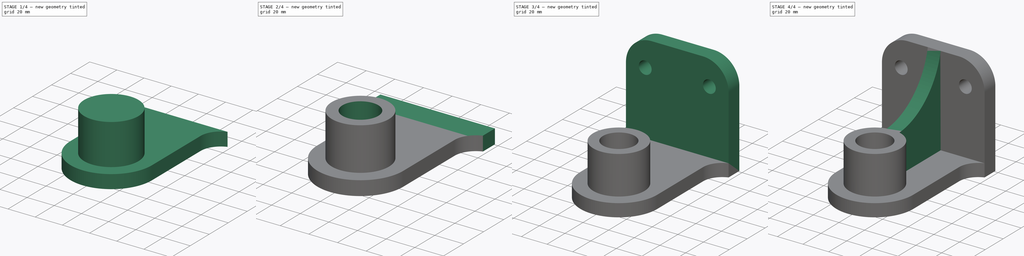
[diagram: build sequence overview — one tinted view per stage of 4, left to right]
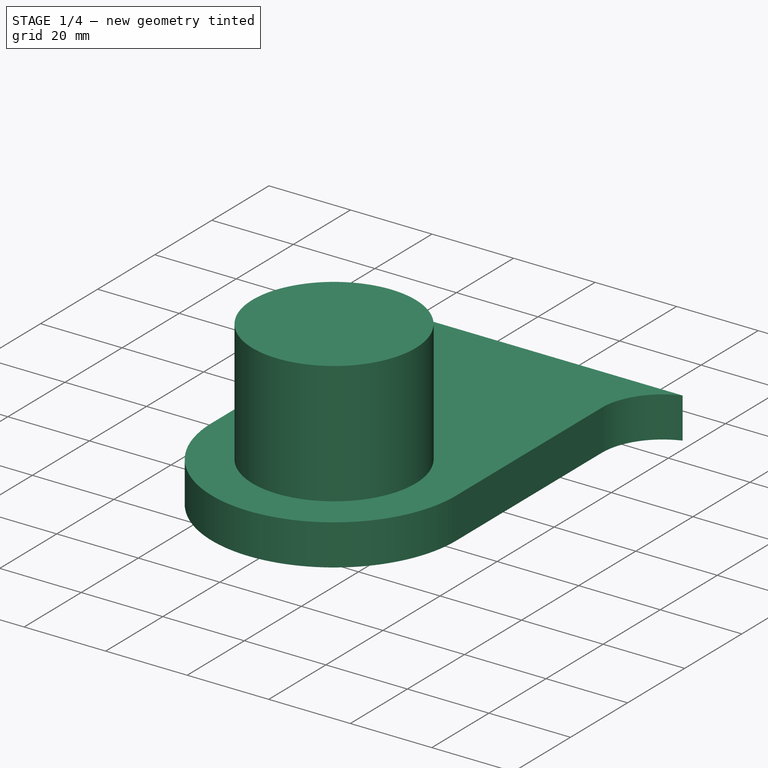
[diagram: stage 1 of 4 — iso view after this stage's code; geometry added in this stage tinted green]
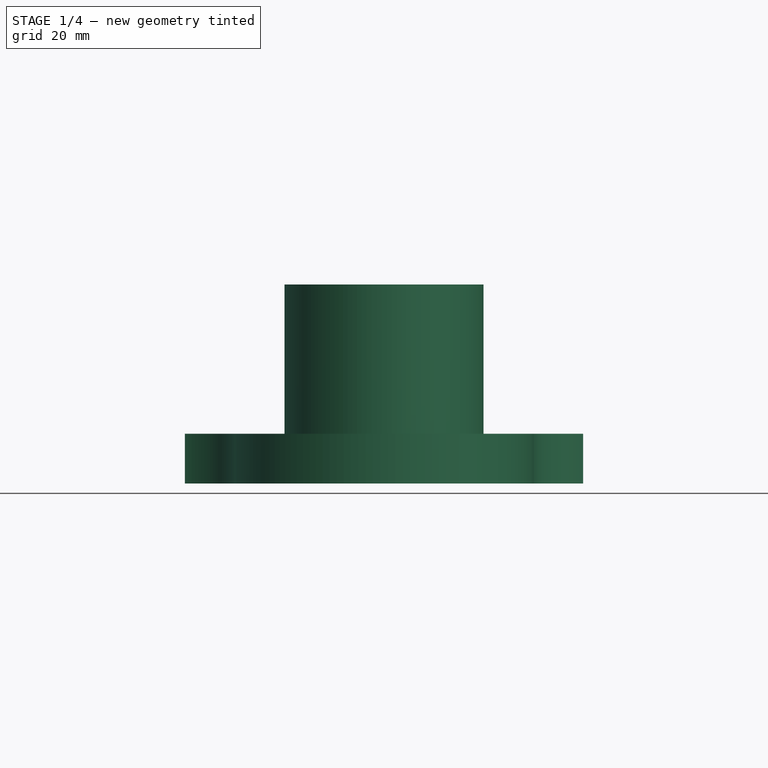
[diagram: stage 1 of 4 — front view after this stage's code; geometry added in this stage tinted green]
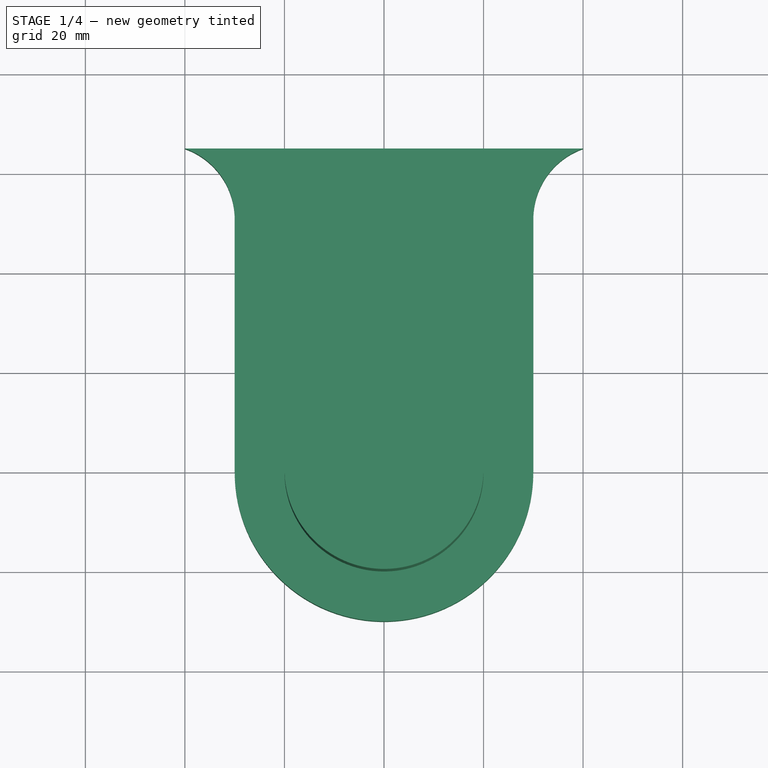
[diagram: stage 1 of 4 — top view after this stage's code; geometry added in this stage tinted green]
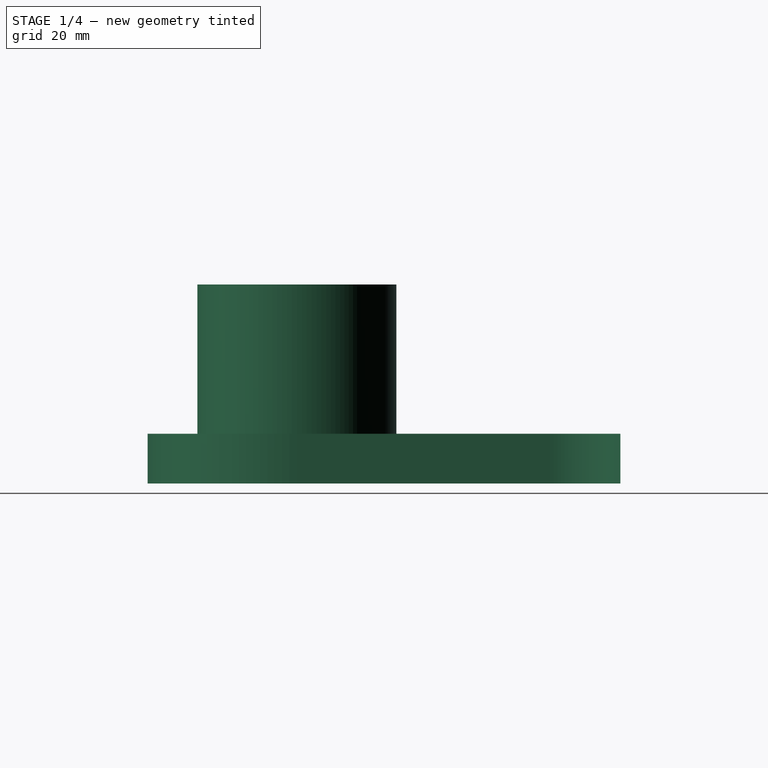
[diagram: stage 1 of 4 — right view after this stage's code; geometry added in this stage tinted green]
FCSTD DOCUMENT  (FreeCAD 0.16R)
Label: Fig 3.25
License: All rights reserved
LicenseURL: http://en.wikipedia.org/wiki/All_rights_reserved
objects: Sketcher::SketchObject×8, PartDesign::Pad×5, PartDesign::Pocket×3, Part::Feature×2, PartDesign::Fillet×1
note: 27 computed .brp shape members not serialized (recipe doc carries the construction recipe); baked Part::Feature solids carry a one-line shape summary decoded from their .brp

FEATURE [Sketcher::SketchObject] Sketch
  sketch-geometry (7):
    g0: LineSegment [constr] StartX=0 StartY=0 StartZ=0 EndX=0 EndY=65 EndZ=0
    g1: LineSegment StartX=-40 StartY=65 StartZ=0 EndX=40 EndY=65 EndZ=0
    g2: ArcOfCircle CenterX=0 CenterY=0 CenterZ=0 NormalX=0 NormalY=0 NormalZ=1 Radius=30 StartAngle=3.14159 EndAngle=6.28319
    g3: ArcOfCircle CenterX=-45 CenterY=50.8579 CenterZ=0 NormalX=0 NormalY=0 NormalZ=1 Radius=15 StartAngle=6.28318 EndAngle=7.51414
    g4: LineSegment StartX=-30 StartY=0 StartZ=0 EndX=-30 EndY=50.8578 EndZ=0
    g5: LineSegment StartX=30 StartY=0 StartZ=0 EndX=30 EndY=50.8579 EndZ=0
    g6: ArcOfCircle CenterX=45 CenterY=50.8579 CenterZ=0 NormalX=0 NormalY=0 NormalZ=1 Radius=15 StartAngle=1.91063 EndAngle=3.14159
  constraints (24):
    c: PointOnObject(g0,g-2)
    c: Vertical(g0)
    c: Horizontal(g1)
    c: Coincident(g2,g0)
    c: PointOnObject(g2,g-1)
    c: PointOnObject(g2,g-1)
    c: Radius(g2) = 30
    c: Coincident(g3,g1)
    c: Radius(g3) = 15
    c: DistanceY(g0,g0) = 65
    c: Coincident(g0,g-1)
    c: PointOnObject(g0,g1)
    c: DistanceX(g1,g1) = 80
    c: Symmetric(g1,g1,g-2)
    c: Coincident(g4,g3)
    c: Vertical(g4)
    c: Coincident(g5,g2)
    c: Vertical(g5)
    c: Coincident(g6,g1)
    c: Coincident(g6,g5)
    c: Radius(g6) = 15
    c: Tangent(g5,g6)
    c: Coincident(g2,g4)
    c: Tangent(g4,g3)
FEATURE [PartDesign::Pad] Pad
  Length = 10
  Length2 = 100
  Reversed = true
  Sketch = -> Sketch
  Type = 0
FEATURE [Sketcher::SketchObject] Sketch001
  Support = -> Pad [Face7]
  sketch-geometry (1):
    g0: Circle CenterX=0 CenterY=0 CenterZ=0 NormalX=0 NormalY=0 NormalZ=1 Radius=20
  constraints (2):
    c: Coincident(g0,g-1)
    c: Radius(g0) = 20
FEATURE [PartDesign::Pad] Pad001
  Length = 30
  Length2 = 100
  Sketch = -> Sketch001
  Type = 0
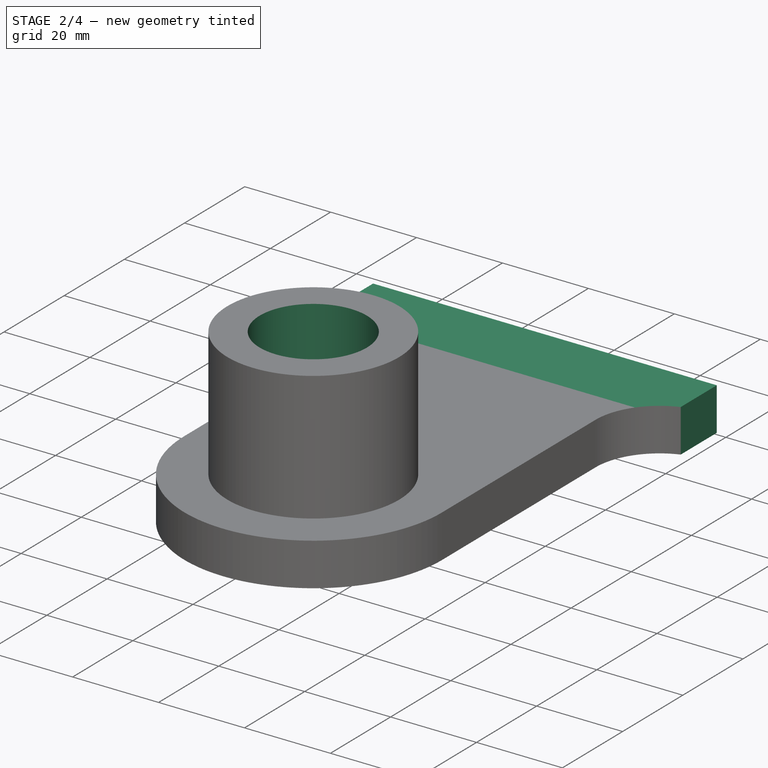
[diagram: stage 2 of 4 — iso view after this stage's code; geometry added in this stage tinted green]
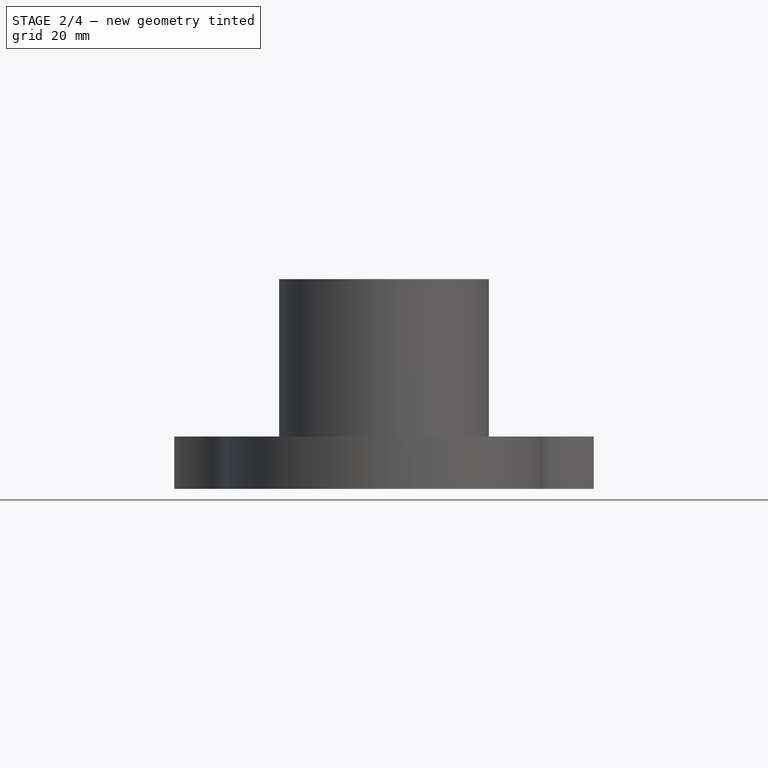
[diagram: stage 2 of 4 — front view after this stage's code; geometry added in this stage tinted green]
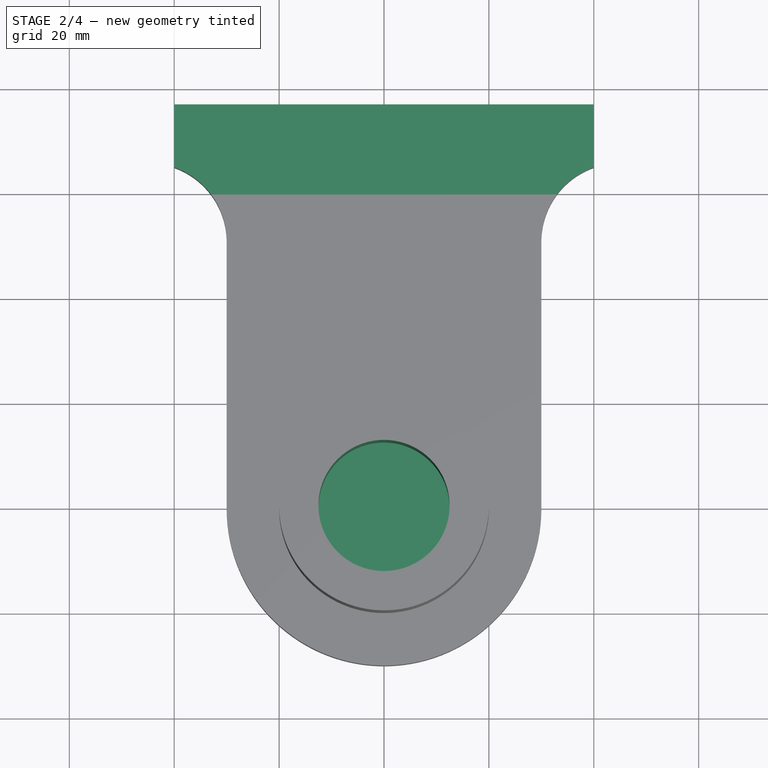
[diagram: stage 2 of 4 — top view after this stage's code; geometry added in this stage tinted green]
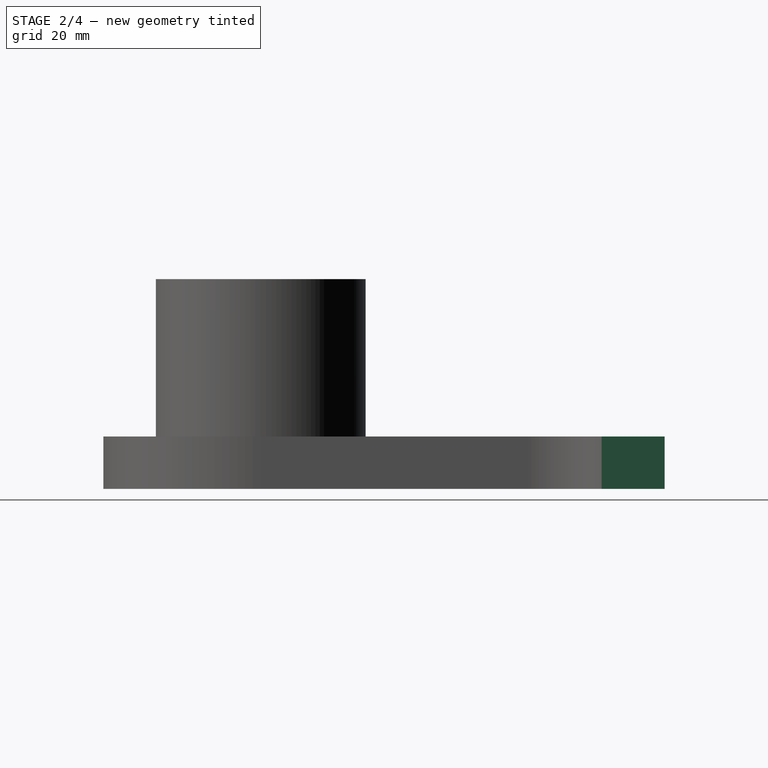
[diagram: stage 2 of 4 — right view after this stage's code; geometry added in this stage tinted green]
FEATURE [Sketcher::SketchObject] Sketch002
  Placement = pos=(0,0,30) rot=(0,0,1;0rad)
  Support = -> Pad001 [Face10]
  sketch-geometry (1):
    g0: Circle CenterX=0 CenterY=0 CenterZ=0 NormalX=0 NormalY=0 NormalZ=1 Radius=12.5
  constraints (2):
    c: Coincident(g0,g-1)
    c: Radius(g0) = 12.5
FEATURE [PartDesign::Pocket] Pocket
  Length = 30
  Sketch = -> Sketch002
  Type = 0
FEATURE [Sketcher::SketchObject] Sketch003
  ExternalGeometry = -> [Pocket]
  Support = -> Pocket [Face4]
  sketch-geometry (4):
    g0: LineSegment StartX=-40 StartY=65 StartZ=0 EndX=40 EndY=65 EndZ=0
    g1: LineSegment StartX=40 StartY=65 StartZ=0 EndX=40 EndY=77 EndZ=0
    g2: LineSegment StartX=40 StartY=77 StartZ=0 EndX=-40 EndY=77 EndZ=0
    g3: LineSegment StartX=-40 StartY=77 StartZ=0 EndX=-40 EndY=65 EndZ=0
  constraints (11):
    c: Coincident(g0,g1)
    c: Coincident(g1,g2)
    c: Coincident(g2,g3)
    c: Coincident(g3,g0)
    c: Horizontal(g0)
    c: Horizontal(g2)
    c: Vertical(g1)
    c: Vertical(g3)
    c: Coincident(g0,g-3)
    c: Coincident(g0,g-3)
    c: DistanceY(g1,g1) = 12
FEATURE [PartDesign::Pad] Pad002
  Length = 10
  Length2 = 100
  Reversed = true
  Sketch = -> Sketch003
  Type = 0
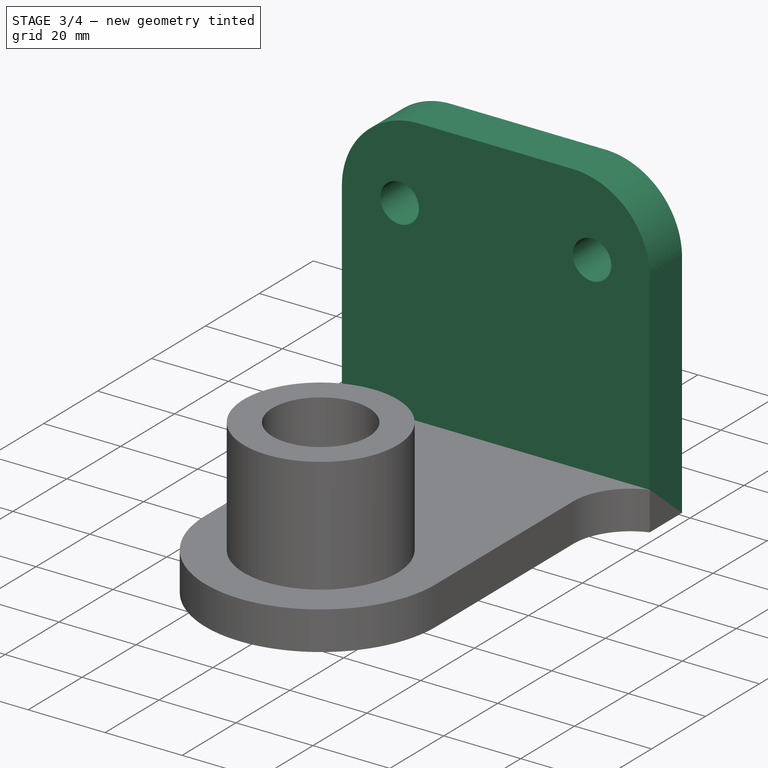
[diagram: stage 3 of 4 — iso view after this stage's code; geometry added in this stage tinted green]
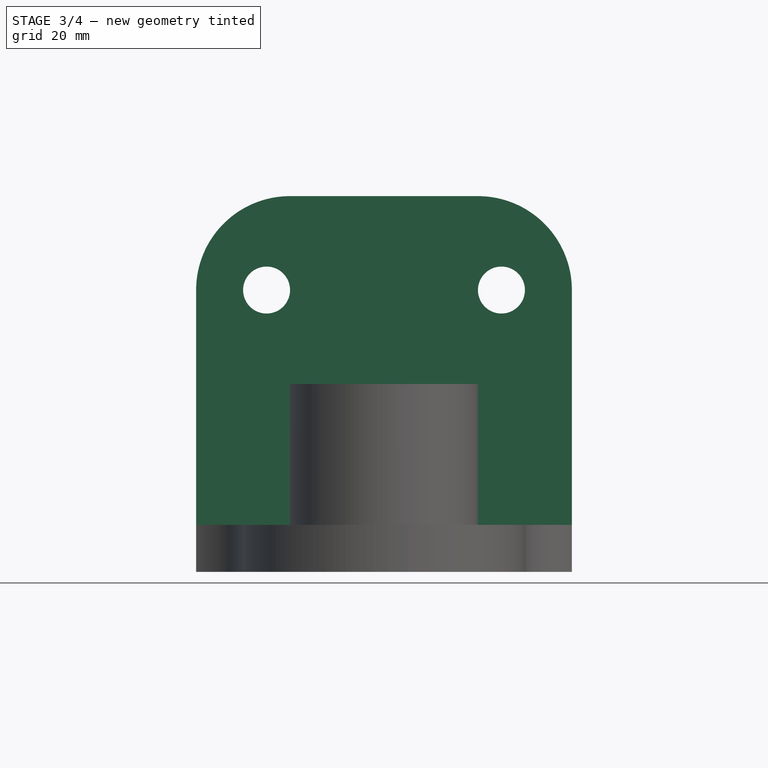
[diagram: stage 3 of 4 — front view after this stage's code; geometry added in this stage tinted green]
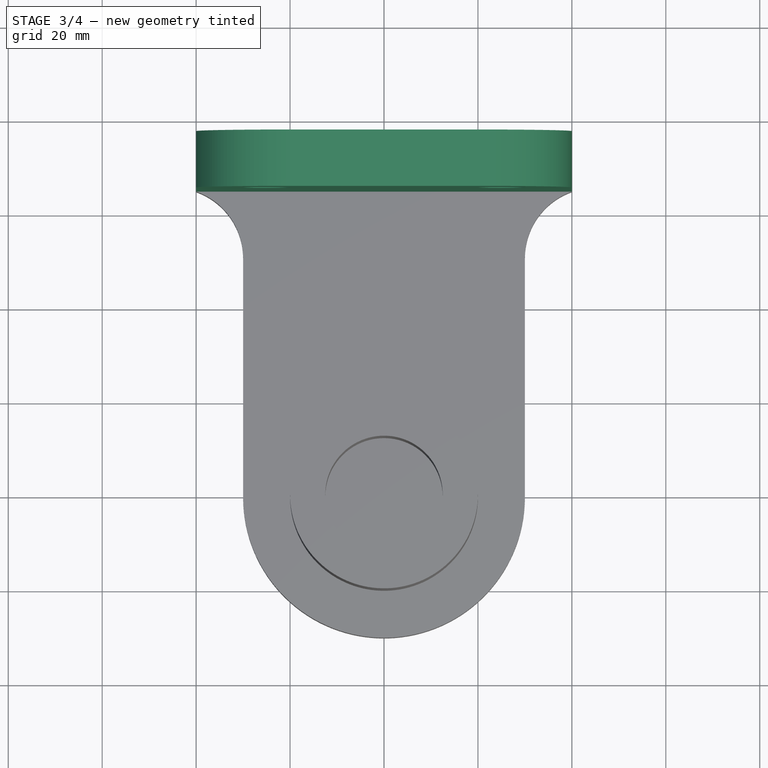
[diagram: stage 3 of 4 — top view after this stage's code; geometry added in this stage tinted green]
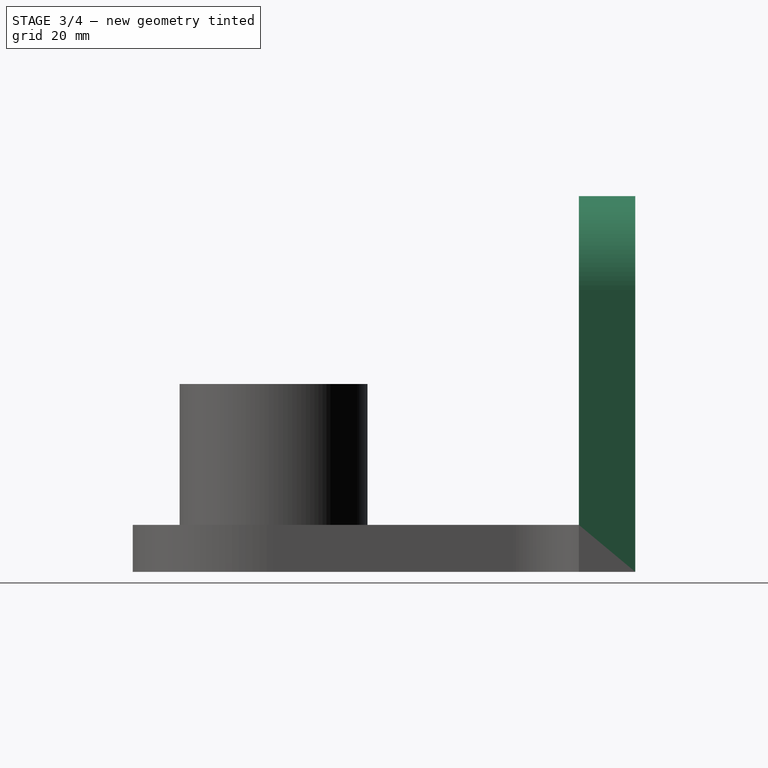
[diagram: stage 3 of 4 — right view after this stage's code; geometry added in this stage tinted green]
FEATURE [Sketcher::SketchObject] Sketch004
  ExternalGeometry = -> [Pad002]
  Support = -> Pad002 [Face9]
  sketch-geometry (4):
    g0: LineSegment StartX=-40 StartY=65 StartZ=0 EndX=40 EndY=65 EndZ=0
    g1: LineSegment StartX=40 StartY=65 StartZ=0 EndX=40 EndY=77 EndZ=0
    g2: LineSegment StartX=40 StartY=77 StartZ=0 EndX=-40 EndY=77 EndZ=0
    g3: LineSegment StartX=-40 StartY=77 StartZ=0 EndX=-40 EndY=65 EndZ=0
  constraints (10):
    c: Coincident(g0,g1)
    c: Coincident(g1,g2)
    c: Coincident(g2,g3)
    c: Coincident(g3,g0)
    c: Horizontal(g0)
    c: Horizontal(g2)
    c: Vertical(g1)
    c: Vertical(g3)
    c: Coincident(g1,g-3)
    c: Coincident(g0,g-4)
FEATURE [PartDesign::Pad] Pad003
  Length = 70
  Length2 = 100
  Sketch = -> Sketch004
  Type = 0
FEATURE [PartDesign::Fillet] Fillet
  Base = -> Pad003 [Edge29,Edge27]
  Radius = 20
FEATURE [Sketcher::SketchObject] Sketch005
  ExternalGeometry = -> [Fillet]
  Placement = pos=(0,65,0) rot=(1,0,0;1.5708rad)
  Support = -> Fillet [Face1]
  sketch-geometry (2):
    g0: Circle CenterX=-25 CenterY=50 CenterZ=0 NormalX=0 NormalY=0 NormalZ=1 Radius=5
    g1: Circle CenterX=25 CenterY=50 CenterZ=0 NormalX=0 NormalY=0 NormalZ=1 Radius=5
  constraints (6):
    c: Radius(g0) = 5
    c: Equal(g0,g1)
    c: DistanceY(g0,g-3) = 20
    c: DistanceY(g1,g-3) = 20
    c: DistanceX(g0,g1) = 50
    c: Symmetric(g0,g1,g-2)
FEATURE [PartDesign::Pocket] Pocket001
  Length = 5
  Sketch = -> Sketch005
  Type = 1
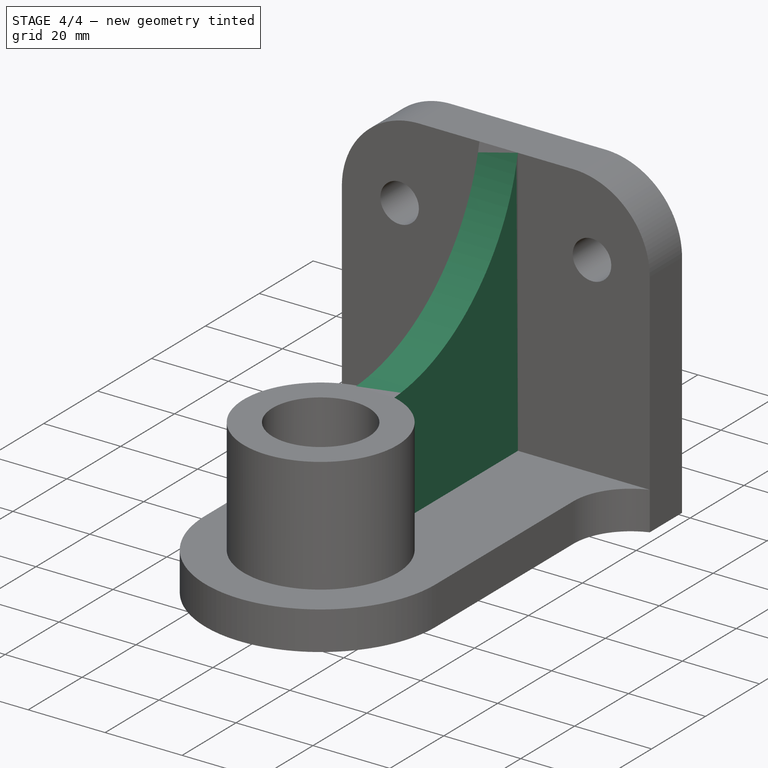
[diagram: stage 4 of 4 — iso view after this stage's code; geometry added in this stage tinted green]
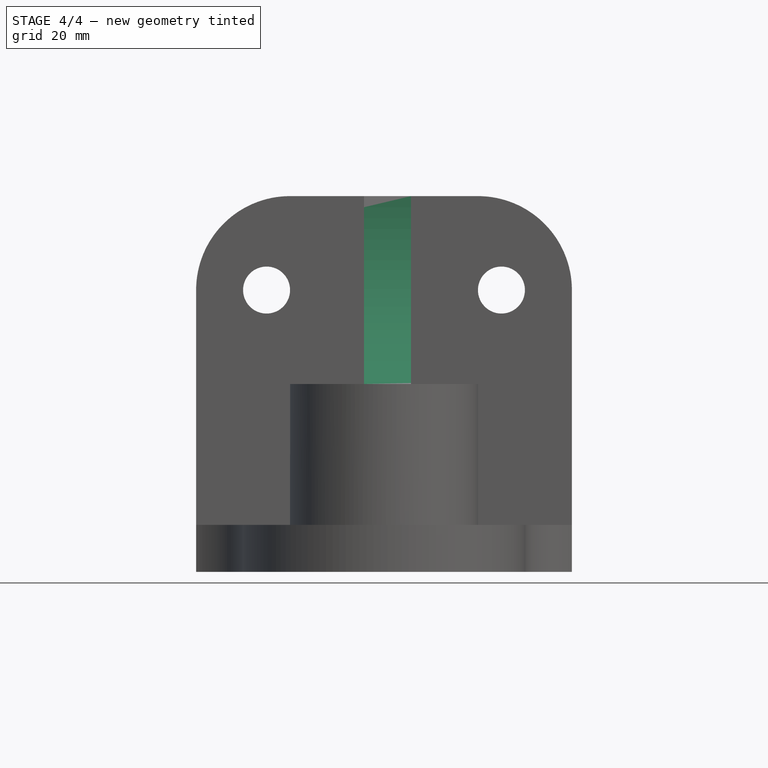
[diagram: stage 4 of 4 — front view after this stage's code; geometry added in this stage tinted green]
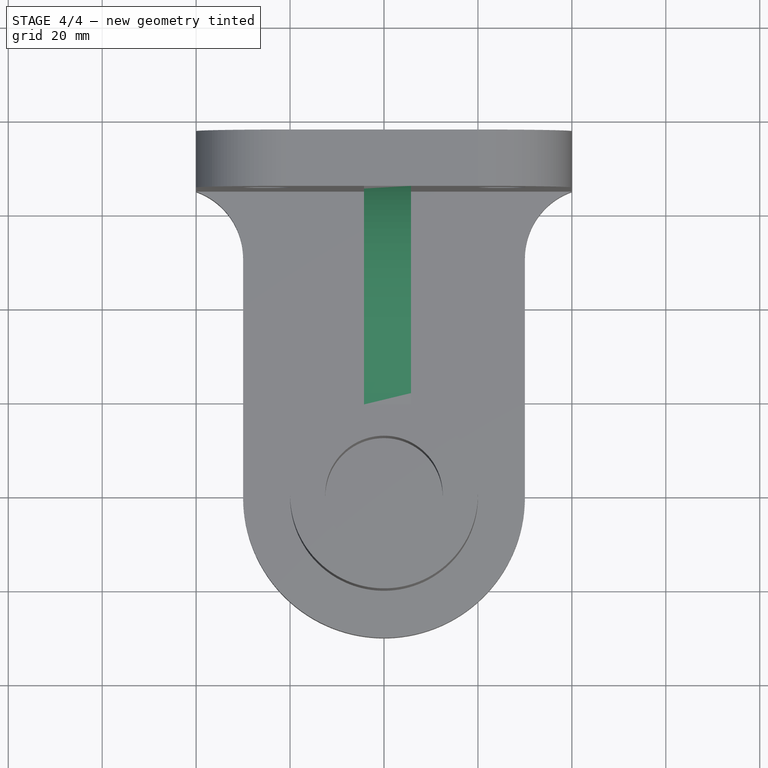
[diagram: stage 4 of 4 — top view after this stage's code; geometry added in this stage tinted green]
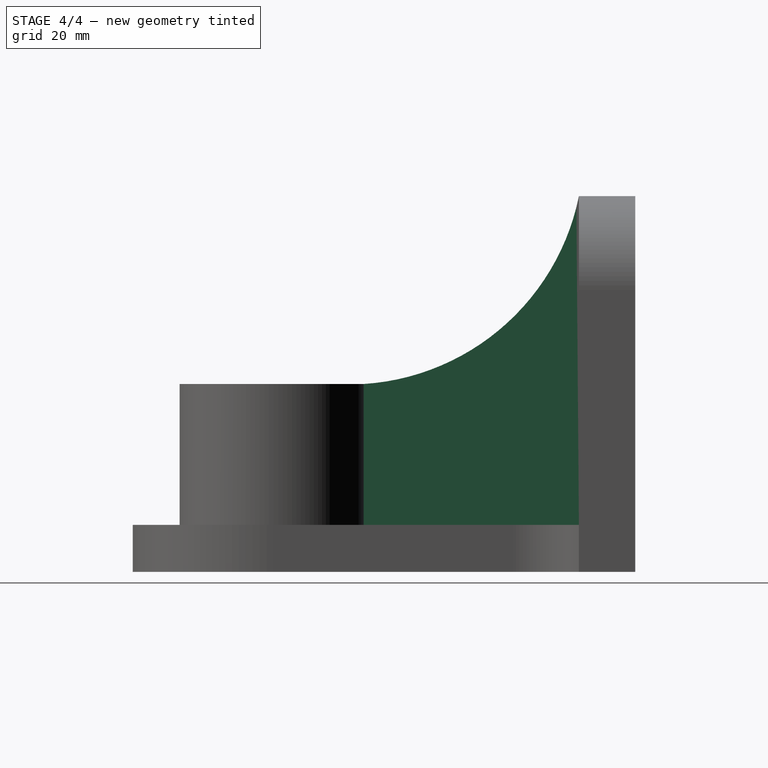
[diagram: stage 4 of 4 — right view after this stage's code; geometry added in this stage tinted green]
FEATURE [Sketcher::SketchObject] Sketch006
  ExternalGeometry = -> [Pocket001]
  Support = -> Pocket001 [Face4]
  sketch-geometry (4):
    g0: LineSegment StartX=-4.24814 StartY=65 StartZ=0 EndX=5.75186 EndY=65 EndZ=0
    g1: LineSegment StartX=5.75186 StartY=65 StartZ=0 EndX=5.75186 EndY=16.8025 EndZ=0
    g2: LineSegment StartX=5.75186 StartY=16.8025 StartZ=0 EndX=-4.24814 EndY=16.8025 EndZ=0
    g3: LineSegment StartX=-4.24814 StartY=16.8025 StartZ=0 EndX=-4.24814 EndY=65 EndZ=0
  constraints (10):
    c: Coincident(g0,g1)
    c: Coincident(g1,g2)
    c: Coincident(g2,g3)
    c: Coincident(g3,g0)
    c: Horizontal(g0)
    c: Horizontal(g2)
    c: Vertical(g1)
    c: Vertical(g3)
    c: DistanceX(g0,g0) = 10
    c: PointOnObject(g0,g-3)
FEATURE [PartDesign::Pad] Pad004
  Length = 70
  Length2 = 100
  Sketch = -> Sketch006
  Type = 0
FEATURE [Sketcher::SketchObject] Sketch007
  ExternalGeometry = -> [Pad004]
  Placement = pos=(5.75186,0,0) rot=(0.57735,0.57735,0.57735;2.0944rad)
  Support = -> Pad004 [Face17]
  sketch-geometry (5):
    g0: ArcOfCircle CenterX=15.9898 CenterY=79.8997 CenterZ=0 NormalX=0 NormalY=0 NormalZ=1 Radius=50 StartAngle=4.77574 EndAngle=6.08387
    g1: LineSegment StartX=65 StartY=70 StartZ=0 EndX=66.9465 EndY=79.6366 EndZ=0
    g2: LineSegment StartX=66.9465 StartY=79.6366 StartZ=0 EndX=9.25998 EndY=79.6366 EndZ=0
    g3: LineSegment StartX=9.25998 StartY=79.6366 StartZ=0 EndX=9.25998 EndY=30 EndZ=0
    g4: LineSegment StartX=9.25998 StartY=30 StartZ=0 EndX=19.1551 EndY=30 EndZ=0
  constraints (11):
    c: Coincident(g0,g-4)
    c: Coincident(g0,g-3)
    c: Radius(g0) = 50
    c: Tangent(g0,g1) = -1.5708
    c: Coincident(g1,g2)
    c: Horizontal(g2)
    c: Coincident(g2,g3)
    c: Vertical(g3)
    c: Coincident(g3,g4)
    c: Coincident(g4,g0)
    c: Horizontal(g4)
FEATURE [PartDesign::Pocket] Pocket002
  Length = 5
  Sketch = -> Sketch007
  Type = 1
FEATURE [Part::Feature] Pocket002001  label="Pocket003"
  shape: bbox 80 x 107 x 80 mm, 24 faces (baked)
FEATURE [Part::Feature] Pocket002001001  label="Pocket004"
  shape: bbox 80 x 107 x 80 mm, 24 faces (baked)
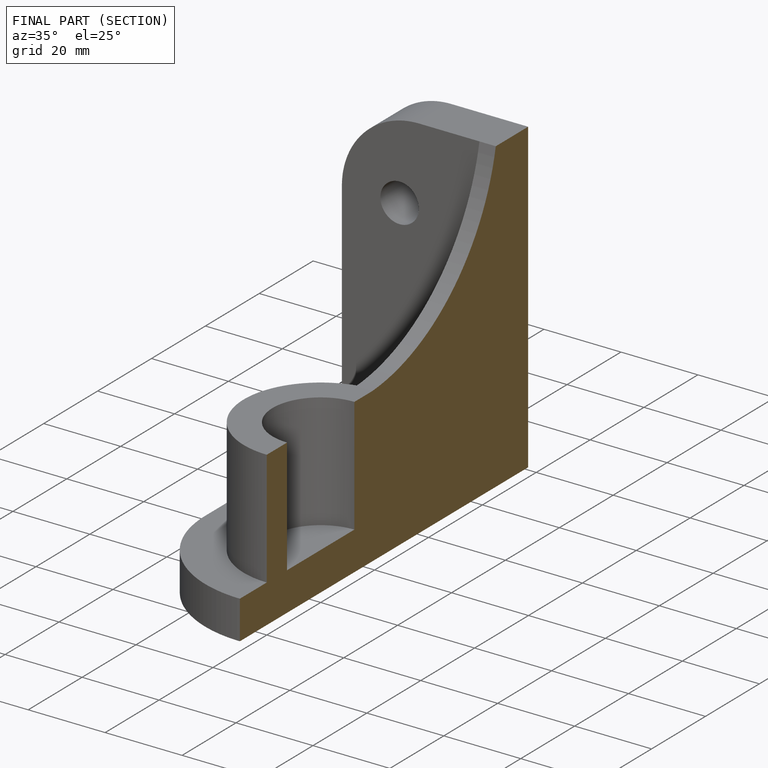
[diagram: finished part — half-section view (interior)]
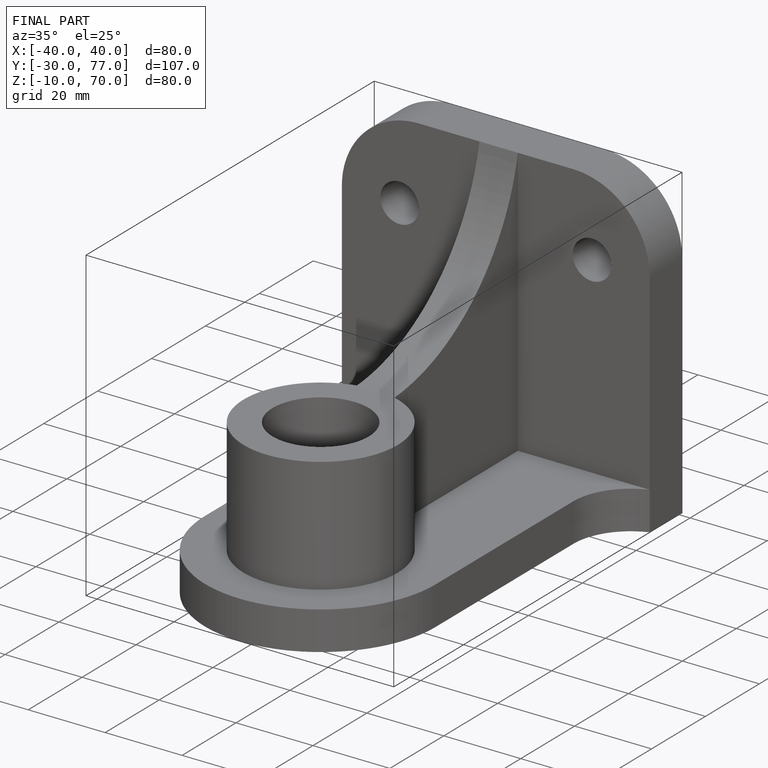
[diagram: finished part — iso view with bounding-box wireframe]
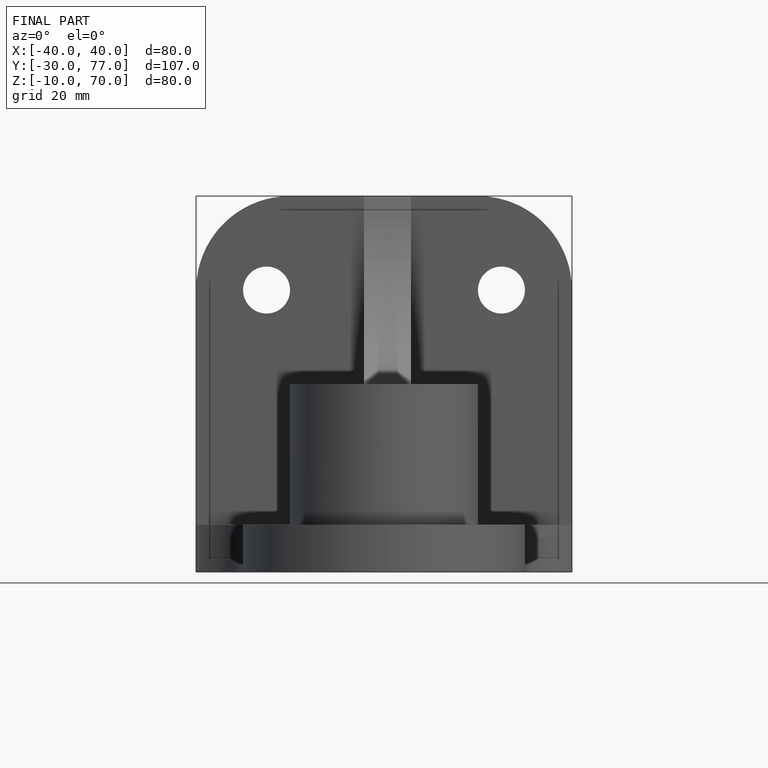
[diagram: finished part — front view with bounding-box wireframe]
